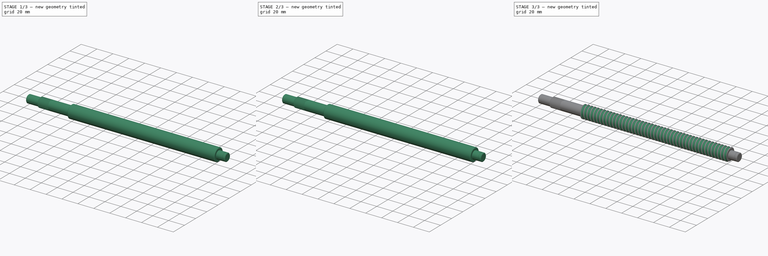
[diagram: build sequence overview — one tinted view per stage of 3, left to right]
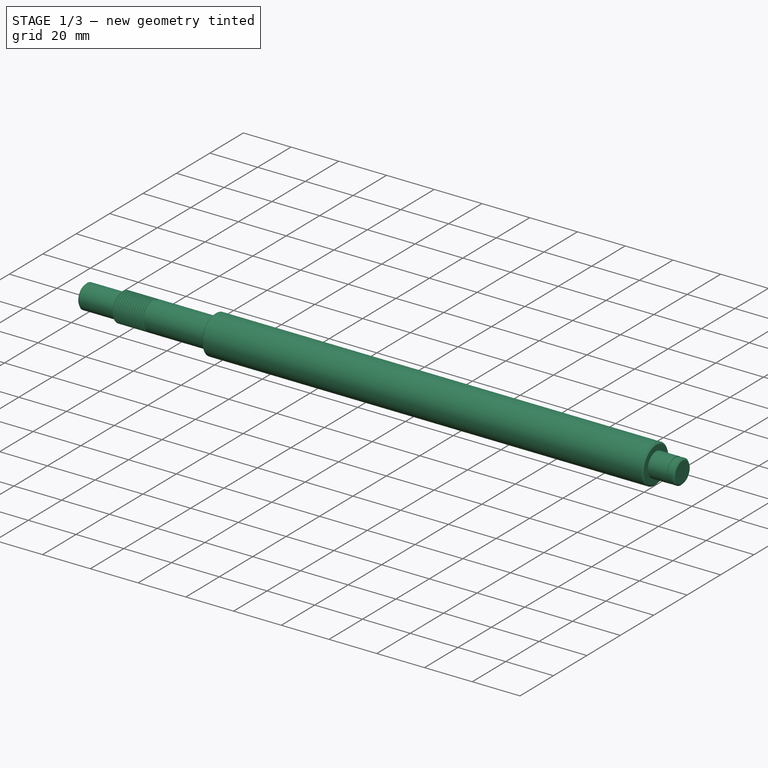
[diagram: stage 1 of 3 — iso view after this stage's code; geometry added in this stage tinted green]
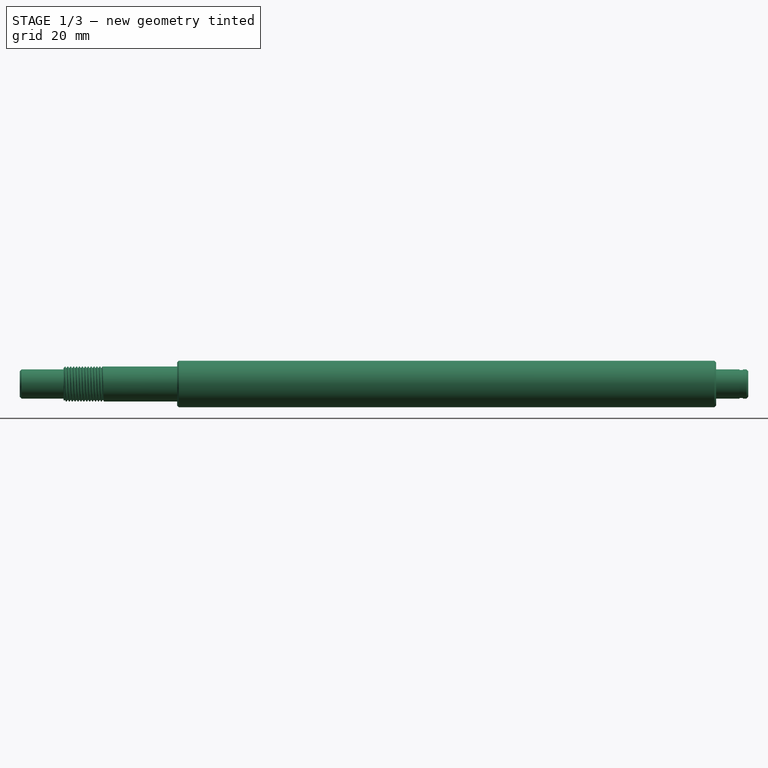
[diagram: stage 1 of 3 — front view after this stage's code; geometry added in this stage tinted green]
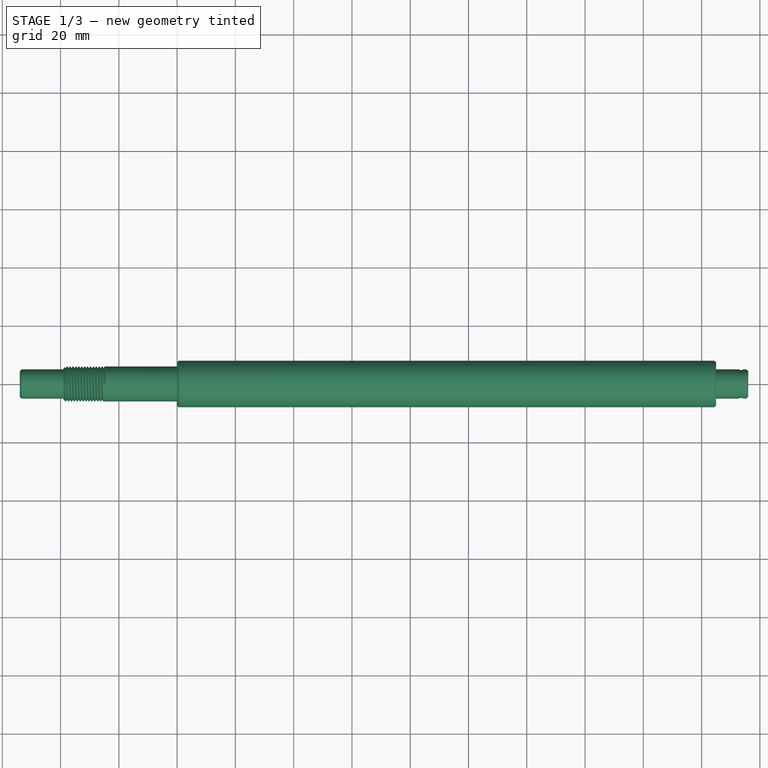
[diagram: stage 1 of 3 — top view after this stage's code; geometry added in this stage tinted green]
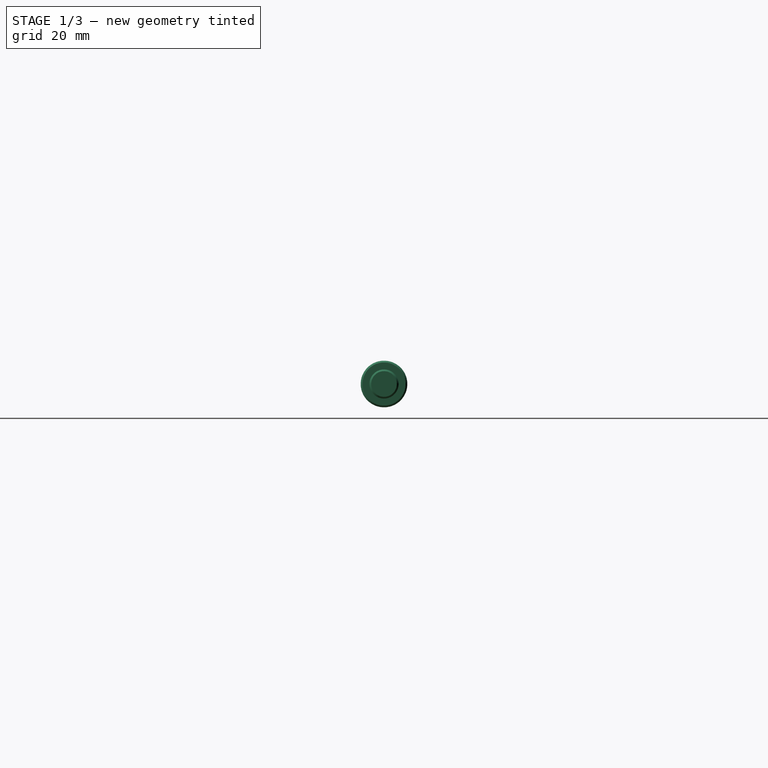
[diagram: stage 1 of 3 — right view after this stage's code; geometry added in this stage tinted green]
FCSTD DOCUMENT  (FreeCAD 0.21R33771 (Git))
Label: BallScrew_SFU16xx
License: Creative Commons Attribution 4.0
LicenseURL: https://creativecommons.org/licenses/by/4.0/
objects: Sketcher::SketchObject×4, PartDesign::SubtractiveHelix×2, PartDesign::Body×2, App::FeaturePython×1, PartDesign::Revolution×1, PartDesign::Pocket×1, PartDesign::FeatureBase×1
note: 15 computed .brp shape members not serialized (recipe doc carries the construction recipe); baked Part::Feature solids carry a one-line shape summary decoded from their .brp

FEATURE [App::FeaturePython] PropertyBag  label="Dimensions"  # WARN: FeaturePython — macro-defined, semantics opaque (R4)
  CustomPropertyGroups = Dimensions | Notes
  Length = 250
  Notes = See Tooltip
  Pitch = 5
FEATURE [Sketcher::SketchObject] Sketch
  FullyConstrained = true
  MapMode = 5
  Placement = pos=(0,0,0) rot=(1,0,0;1.5708rad)
  Support = -> [XZ_Plane]
  expr: Constraints[56] = <<Dimensions>>.Length
  sketch-geometry (19):
    g0: LineSegment StartX=0 StartY=6 StartZ=0 EndX=-38.4 EndY=6 EndZ=0
    g1: LineSegment StartX=-39 StartY=5.4 StartZ=0 EndX=-39 EndY=5 EndZ=0
    g2: LineSegment StartX=-39 StartY=5 StartZ=0 EndX=-53.4 EndY=5 EndZ=0
    g3: LineSegment StartX=-53.4 StartY=5 StartZ=0 EndX=-54 EndY=4.4 EndZ=0
    g4: LineSegment StartX=-54 StartY=4.4 StartZ=0 EndX=-54 EndY=-3.91e-14 EndZ=0
    g5: LineSegment StartX=-39 StartY=5.4 StartZ=0 EndX=-38.4 EndY=6 EndZ=0
    g6: LineSegment StartX=0 StartY=6 StartZ=0 EndX=-1.947e-13 EndY=7.4 EndZ=0
    g7: LineSegment StartX=-1.947e-13 StartY=7.4 StartZ=0 EndX=0.6 EndY=8 EndZ=0
    g8: LineSegment StartX=0.6 StartY=8 StartZ=0 EndX=184.4 EndY=8 EndZ=0
    g9: LineSegment StartX=184.4 StartY=8 StartZ=0 EndX=185 EndY=7.4 EndZ=0
    g10: LineSegment StartX=185 StartY=7.4 StartZ=0 EndX=185 EndY=5 EndZ=0
    g11: LineSegment StartX=185 StartY=5 StartZ=0 EndX=193 EndY=5 EndZ=0
    g12: LineSegment StartX=193 StartY=5 StartZ=0 EndX=193 EndY=4.8 EndZ=0
    g13: LineSegment StartX=193 StartY=4.8 StartZ=0 EndX=194.15 EndY=4.8 EndZ=0
    g14: LineSegment StartX=194.15 StartY=4.8 StartZ=0 EndX=194.15 EndY=5 EndZ=0
    g15: LineSegment StartX=194.15 StartY=5 StartZ=0 EndX=195.4 EndY=5 EndZ=0
    g16: LineSegment StartX=196 StartY=4.4 StartZ=0 EndX=196 EndY=-1.87e-14 EndZ=0
    g17: LineSegment StartX=196 StartY=-1.83e-14 StartZ=0 EndX=-54 EndY=-3.95e-14 EndZ=0
    g18: LineSegment StartX=195.4 StartY=5 StartZ=0 EndX=196 EndY=4.4 EndZ=0
  constraints (58):
    c: PointOnObject(g0,g-2)
    c: Horizontal(g0)
    c: Vertical(g1)
    c: Coincident(g1,g2)
    c: Horizontal(g2)
    c: Coincident(g2,g3)
    c: Coincident(g3,g4)
    c: PointOnObject(g4,g-1)
    c: Vertical(g4)
    c: Coincident(g0,g5)
    c: Coincident(g1,g5)
    c: Angle(g4,g3) = 2.35619
    c: Parallel(g3,g5)
    c: Coincident(g0,g6)
    c: PointOnObject(g6,g-2)
    c: Coincident(g6,g7)
    c: Coincident(g7,g8)
    c: Horizontal(g8)
    c: Parallel(g7,g5)
    c: DistanceX(g3,g1) = 15
    c: DistanceY(g4,g2) = 5
    c: DistanceY(g4,g0) = 6
    c: DistanceY(g3,g2) = 0.6
    c: Equal(g3,g5)
    c: DistanceX(g1,g6) = 39
    c: DistanceY(g4,g7) = 8
    c: Equal(g5,g7)
    c: Coincident(g8,g9)
    c: Coincident(g9,g10)
    c: Vertical(g10)
    c: Coincident(g10,g11)
    c: Horizontal(g11)
    c: Coincident(g11,g12)
    c: Vertical(g12)
    c: Coincident(g12,g13)
    c: Horizontal(g13)
    c: Coincident(g13,g14)
    c: Vertical(g14)
    c: Coincident(g14,g15)
    c: Horizontal(g15)
    c: PointOnObject(g16,g-1)
    c: Vertical(g16)
    c: Coincident(g16,g17)
    c: Coincident(g17,g4)
    c: Perpendicular(g9,g7)
    c: Equal(g7,g9)
    c: Horizontal(g11,g14)
    c: DistanceY(g16,g15) = 5
    c: DistanceX(g9,g11) = 8
    c: DistanceX(g9,g16) = 11
    c: Coincident(g18,g15)
    c: Coincident(g18,g16)
    c: Parallel(g9,g18)
    c: Equal(g18,g9)
    c: DistanceY(g12,g12) = 0.2
    c: DistanceX(g13,g13) = 1.15
    c: DistanceX(g3,g16) = 250
    c: DistanceX(g6,g9) = 185  'effLenght'
FEATURE [PartDesign::Revolution] Revolution
  Angle = 360
  Axis = (1,0,0)
  Base = (0,0,0)
  Placement = pos=(0,0,0) rot=(1,0,0;1.5708rad)
  Profile = -> Sketch
  ReferenceAxis = -> Sketch [H_Axis]
  Refine = true
FEATURE [Sketcher::SketchObject] Sketch001
  FullyConstrained = true
  MapMode = 5
  Placement = pos=(0,0,0) rot=(1,0,0;1.5708rad)
  Support = -> [XZ_Plane]
  sketch-geometry (6):
    g0: LineSegment StartX=-25.48 StartY=6.2 StartZ=0 EndX=-24.52 EndY=6.2 EndZ=0
    g1: LineSegment StartX=-24.52 StartY=6.2 StartZ=0 EndX=-25 EndY=5.36862 EndZ=0
    g2: LineSegment StartX=-25 StartY=5.36862 StartZ=0 EndX=-25.48 EndY=6.2 EndZ=0
    g3: LineSegment StartX=-24.52 StartY=6.2 StartZ=0 EndX=-24.9134 EndY=5.51862 EndZ=0
    g4: ArcOfCircle CenterX=-25 CenterY=5.56862 CenterZ=0 NormalX=0 NormalY=0 NormalZ=1 AngleXU=0 Radius=0.1 StartAngle=3.66519 EndAngle=5.75959
    g5: LineSegment StartX=-25.0866 StartY=5.51862 StartZ=0 EndX=-25.48 EndY=6.2 EndZ=0
  constraints (16):
    c: Horizontal(g0)
    c: Coincident(g0,g1)
    c: Coincident(g1,g2)
    c: Coincident(g2,g0)
    c: Coincident(g0,g3)
    c: Tangent(g3,g4) = 1.5708
    c: Tangent(g4,g5) = 1.5708
    c: Coincident(g5,g0)
    c: Radius(g4) = 0.1
    c: PointOnObject(g3,g1)
    c: PointOnObject(g4,g2)
    c: Equal(g1,g2)
    c: Equal(g2,g0)
    c: DistanceX(g0,g0) = 0.96
    c: DistanceY(g-1,g0) = 6.2
    c: DistanceX(g1,g-1) = 25
FEATURE [PartDesign::SubtractiveHelix] SubtractiveHelix
  Angle = 0
  Axis = (1,0,0)
  Base = (0,0,0)
  BaseFeature = -> Revolution
  Growth = 0
  HasBeenEdited = true
  Height = 14
  LeftHanded = false
  Mode = 0
  Outside = false
  Pitch = 1
  Placement = pos=(0,0,0) rot=(1,0,0;1.5708rad)
  Profile = -> Sketch001
  ReferenceAxis = -> Sketch001 [H_Axis]
  Refine = true
  Reversed = true
  Turns = 14
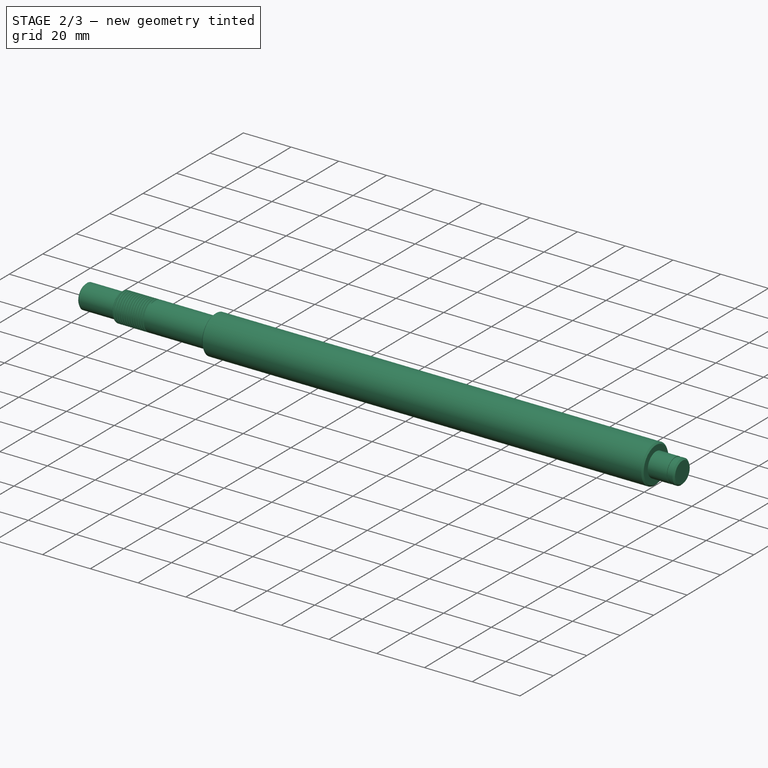
[diagram: stage 2 of 3 — iso view after this stage's code; geometry added in this stage tinted green]
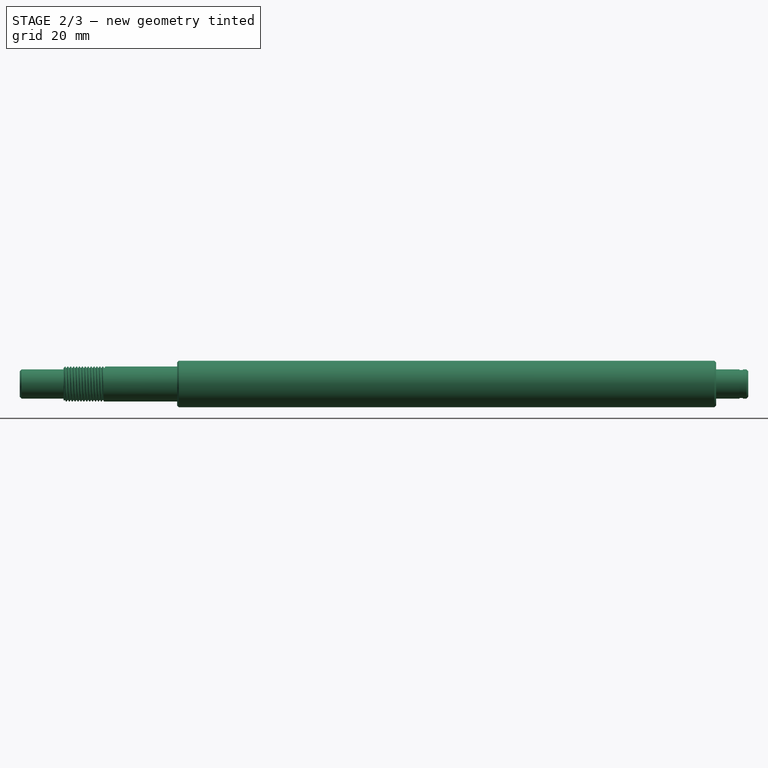
[diagram: stage 2 of 3 — front view after this stage's code; geometry added in this stage tinted green]
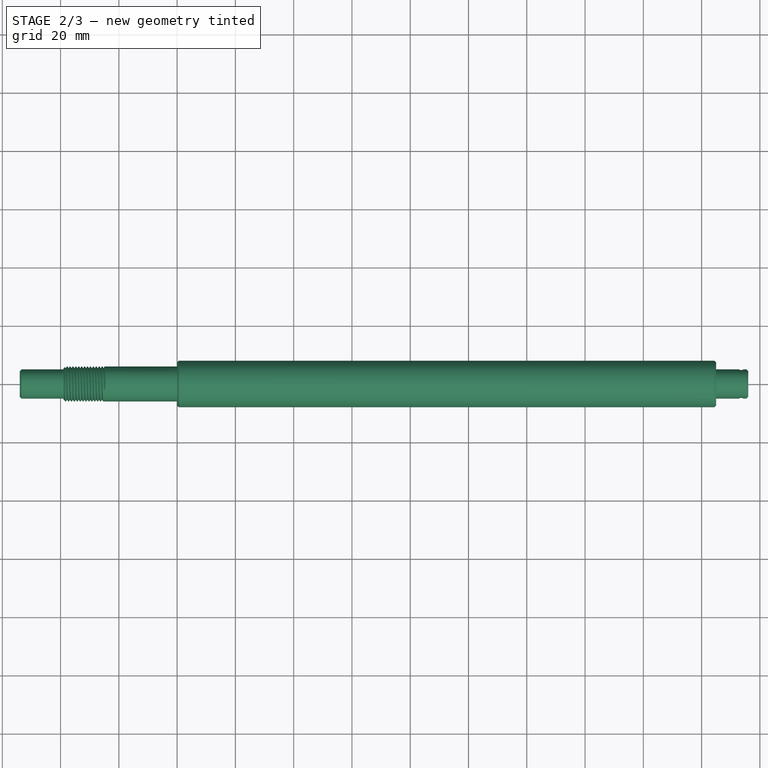
[diagram: stage 2 of 3 — top view after this stage's code; geometry added in this stage tinted green]
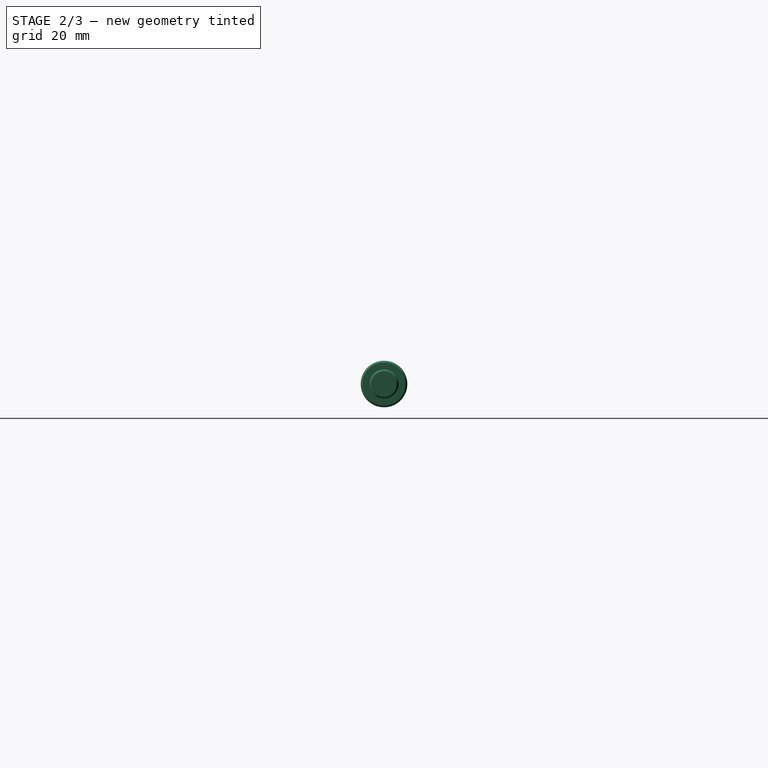
[diagram: stage 2 of 3 — right view after this stage's code; geometry added in this stage tinted green]
FEATURE [Sketcher::SketchObject] Sketch002
  FullyConstrained = true
  MapMode = 5
  Placement = pos=(0,0,0) rot=(1,0,0;1.5708rad)
  Support = -> [XZ_Plane]
  sketch-geometry (6):
    g0: LineSegment StartX=-25.48 StartY=6.2 StartZ=0 EndX=-24.52 EndY=6.2 EndZ=0
    g1: LineSegment StartX=-24.52 StartY=6.2 StartZ=0 EndX=-25 EndY=5.36862 EndZ=0
    g2: LineSegment StartX=-25 StartY=5.36862 StartZ=0 EndX=-25.48 EndY=6.2 EndZ=0
    g3: LineSegment StartX=-24.52 StartY=6.2 StartZ=0 EndX=-24.9134 EndY=5.51862 EndZ=0
    g4: ArcOfCircle CenterX=-25 CenterY=5.56862 CenterZ=0 NormalX=0 NormalY=0 NormalZ=1 AngleXU=0 Radius=0.1 StartAngle=3.66519 EndAngle=5.75959
    g5: LineSegment StartX=-25.0866 StartY=5.51862 StartZ=0 EndX=-25.48 EndY=6.2 EndZ=0
  constraints (16):
    c: Horizontal(g0)
    c: Coincident(g0,g1)
    c: Coincident(g1,g2)
    c: Coincident(g2,g0)
    c: Coincident(g0,g3)
    c: Tangent(g3,g4) = 1.5708
    c: Tangent(g4,g5) = 1.5708
    c: Coincident(g5,g0)
    c: Radius(g4) = 0.1
    c: PointOnObject(g3,g1)
    c: PointOnObject(g4,g2)
    c: Equal(g1,g2)
    c: Equal(g2,g0)
    c: DistanceX(g0,g0) = 0.96
    c: DistanceY(g-1,g0) = 6.2
    c: DistanceX(g1,g-1) = 25
FEATURE [PartDesign::Pocket] Pocket
  BaseFeature = -> SubtractiveHelix
  Direction = (0,1,-2e-16)
  Length = 5
  Length2 = 5
  Placement = pos=(0,0,0) rot=(1,0,0;1.5708rad)
  Profile = -> Sketch002
  ReferenceAxis = -> Sketch002 [N_Axis]
  Refine = true
  Reversed = true
  Type = 1
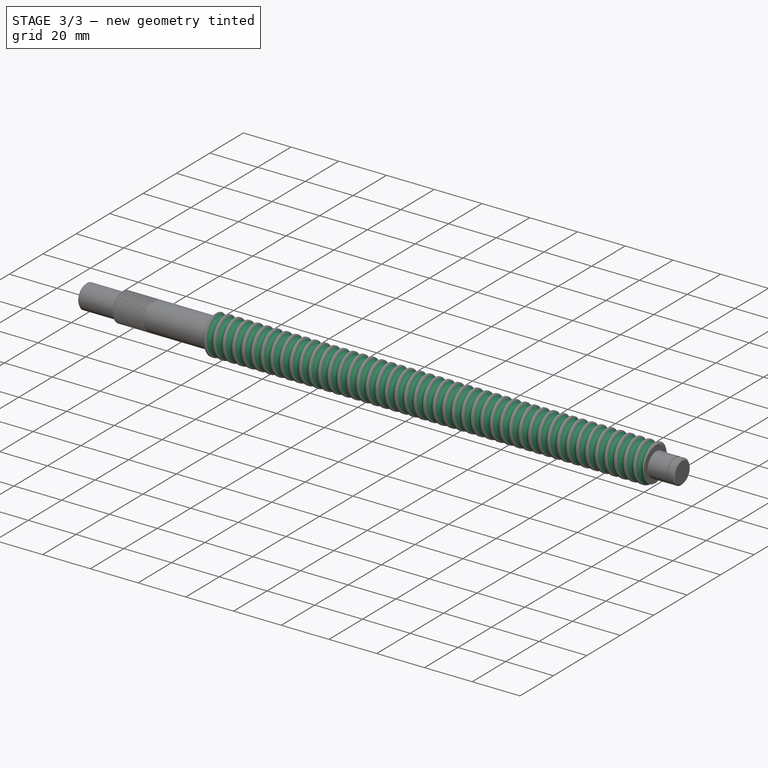
[diagram: stage 3 of 3 — iso view after this stage's code; geometry added in this stage tinted green]
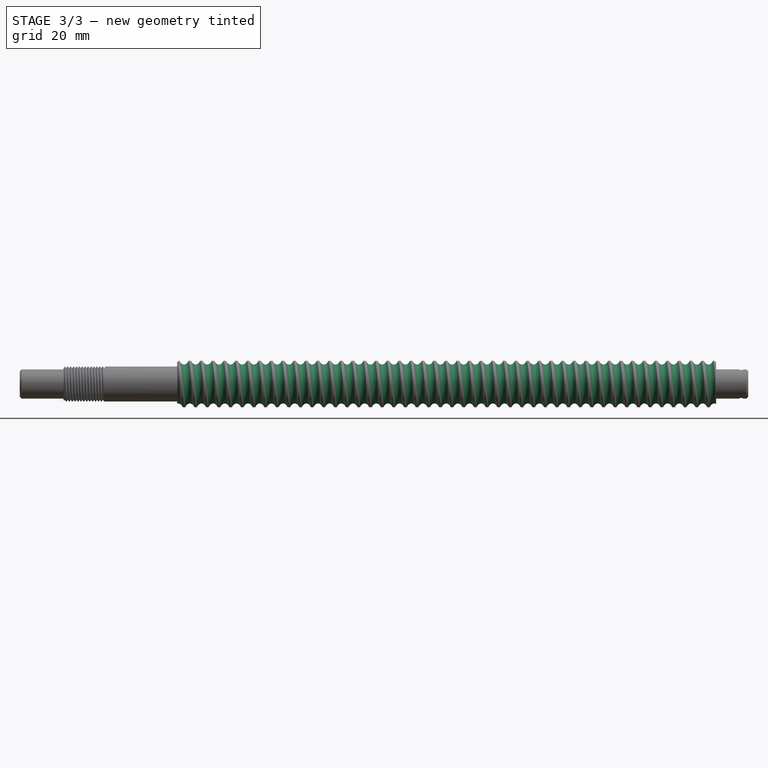
[diagram: stage 3 of 3 — front view after this stage's code; geometry added in this stage tinted green]
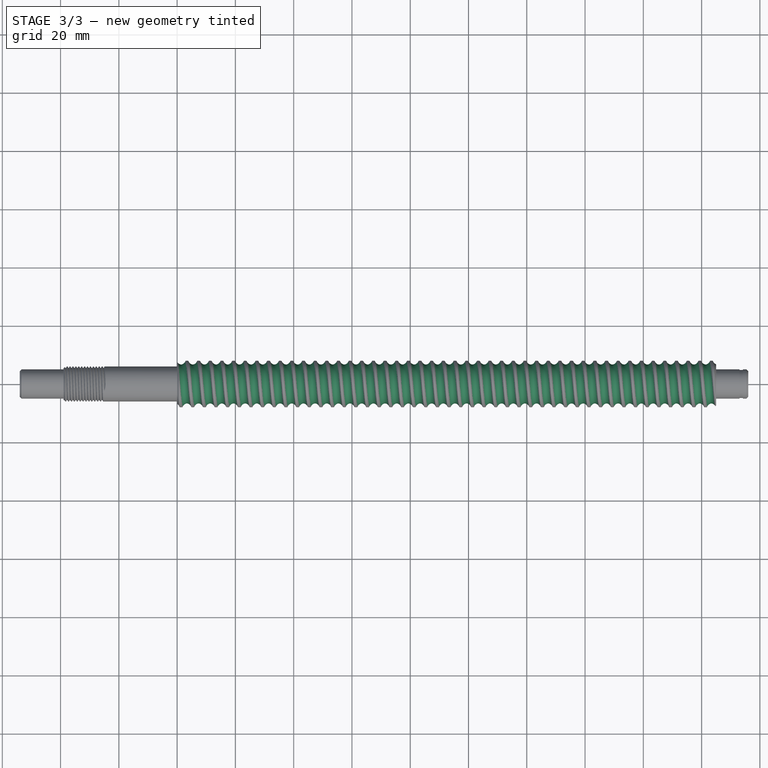
[diagram: stage 3 of 3 — top view after this stage's code; geometry added in this stage tinted green]
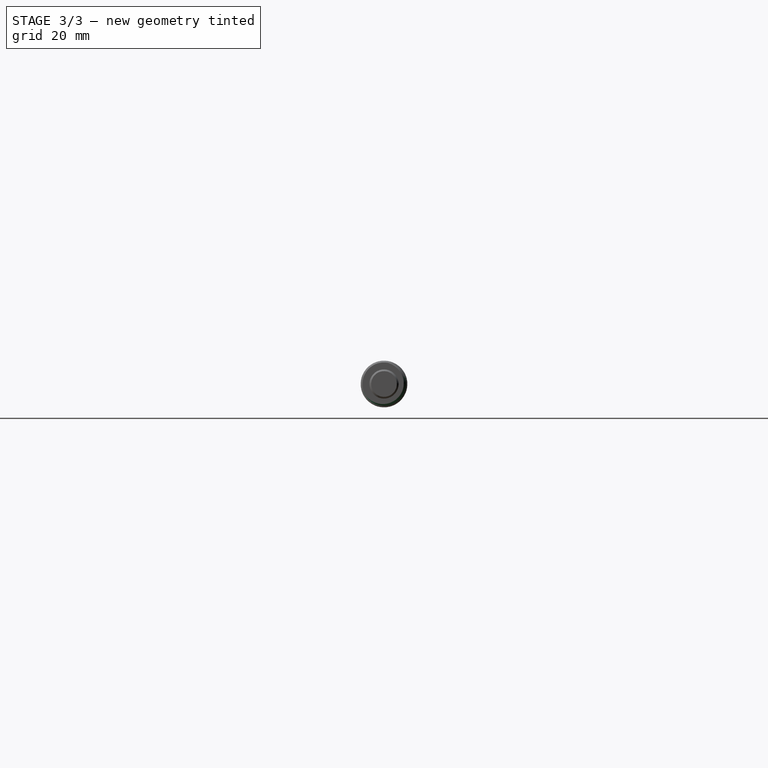
[diagram: stage 3 of 3 — right view after this stage's code; geometry added in this stage tinted green]
FEATURE [PartDesign::Body] Body  label="Spindle-Body"
  Group = -> [Sketch,Revolution,Sketch001,SubtractiveHelix,Sketch002,Pocket]
  Origin = -> Origin
  Tip = -> Pocket
FEATURE [PartDesign::FeatureBase] Clone
  BaseFeature = -> Body
FEATURE [Sketcher::SketchObject] Sketch003
  FullyConstrained = true
  MapMode = 5
  Placement = pos=(0,0,0) rot=(1,0,0;1.5708rad)
  Support = -> [XZ_Plane001]
  expr: Constraints[17] = .Constraints.kugel / 2 + 0.3 mm
  expr: Constraints[18] = .Constraints.kugel / 2 - 0.4 mm
  sketch-geometry (16):
    g0: ArcOfCircle CenterX=-1.64261 CenterY=7.88682 CenterZ=0 NormalX=0 NormalY=0 NormalZ=1 AngleXU=0 Radius=1.2 StartAngle=4.34694 EndAngle=5.07783
    g1: ArcOfCircle CenterX=-1.39246 CenterY=8.5406 CenterZ=0 NormalX=0 NormalY=0 NormalZ=1 AngleXU=0 Radius=1.9 StartAngle=3.22886 EndAngle=4.34694
    g2: ArcOfCircle CenterX=-1.89277 CenterY=8.5406 CenterZ=0 NormalX=0 NormalY=0 NormalZ=1 AngleXU=0 Radius=1.9 StartAngle=5.07783 EndAngle=6.19592
    g3: LineSegment StartX=-1.64261 StartY=9.375 StartZ=0 EndX=-1.64261 EndY=6.68682 EndZ=0
    g4: LineSegment StartX=-3.28523 StartY=8.375 StartZ=0 EndX=-3.37272 EndY=9.375 EndZ=0
    g5: LineSegment StartX=-3.37272 StartY=9.375 StartZ=0 EndX=0.0874887 EndY=9.375 EndZ=0
    g6: LineSegment StartX=0.0874887 StartY=9.375 StartZ=0 EndX=-1.3e-15 EndY=8.375 EndZ=0
    g7: Circle CenterX=-1.64261 CenterY=8.375 CenterZ=0 NormalX=0 NormalY=0 NormalZ=1 AngleXU=0 Radius=1.6
    g8: LineSegment StartX=-0.113168 StartY=7.875 StartZ=0 EndX=0.157386 EndY=8.14555 EndZ=0
    g9: LineSegment StartX=0.157386 StartY=8.14555 StartZ=0 EndX=0.157386 EndY=9.375 EndZ=0
    g10: ArcOfCircle CenterX=-1.39246 CenterY=8.5406 CenterZ=0 NormalX=0 NormalY=0 NormalZ=1 AngleXU=0 Radius=1.9 StartAngle=3.4995 EndAngle=4.34694
    g11: ArcOfCircle CenterX=-1.89277 CenterY=8.5406 CenterZ=0 NormalX=0 NormalY=0 NormalZ=1 AngleXU=0 Radius=1.9 StartAngle=5.07783 EndAngle=5.92528
    g12: LineSegment StartX=0.0874887 StartY=9.375 StartZ=0 EndX=0.157386 EndY=9.375 EndZ=0
    g13: LineSegment StartX=-3.37272 StartY=9.375 StartZ=0 EndX=-3.44261 EndY=9.375 EndZ=0
    g14: LineSegment StartX=-3.44261 StartY=9.375 StartZ=0 EndX=-3.44261 EndY=8.14555 EndZ=0
    g15: LineSegment StartX=-3.44261 StartY=8.14555 StartZ=0 EndX=-3.17206 EndY=7.875 EndZ=0
  constraints (46):
    c: Vertical(g3)
    c: PointOnObject(g3,g0)
    c: Symmetric(g1,g2,g3)
    c: PointOnObject(g0,g3)
    c: Tangent(g2,g0) = -1.5708
    c: Tangent(g1,g0) = -1.5708
    c: Horizontal(g1,g2)
    c: Tangent(g1,g4) = 1.5708
    c: Coincident(g4,g5)
    c: Horizontal(g5)
    c: Coincident(g5,g6)
    c: Tangent(g6,g2) = 1.5708
    c: DistanceY(g6,g6) = 1
    c: PointOnObject(g3,g5)
    c: PointOnObject(g7,g3)
    c: Diameter(g7) = 3.2  'kugel'
    c: Tangent(g2,g7)
    c: Radius(g2) = 1.9
    c: Radius(g0) = 1.2
    c: Horizontal(g2,g7)
    c: Angle(g6,g4) = 0.174533
    c: PointOnObject(g2,g-2)
    c: DistanceY(g-1,g7) = 8.375
    c: Coincident(g8,g9)
    c: Coincident(g10,g1)
    c: Coincident(g10,g0)
    c: Coincident(g11,g2)
    c: Coincident(g11,g8)
    c: Coincident(g11,g0)
    c: Coincident(g12,g5)
    c: Coincident(g12,g9)
    c: Horizontal(g12)
    c: Coincident(g5,g13)
    c: Horizontal(g13)
    c: Coincident(g13,g14)
    c: Vertical(g14)
    c: Coincident(g14,g15)
    c: Coincident(g15,g10)
    c: Vertical(g9)
    c: Equal(g15,g8)
    c: Equal(g12,g13)
    c: Perpendicular(g15,g8)
    c: Equal(g9,g14)
    c: DistanceY(g10,g1) = 0.5
    c: DistanceX(g13,g9) = 3.6
    c: DistanceY(g-1,g3) = 6.68682
FEATURE [PartDesign::SubtractiveHelix] SubtractiveHelix001
  Angle = 0
  Axis = (1,0,0)
  Base = (0,0,0)
  BaseFeature = -> Clone
  Growth = 0
  HasBeenEdited = true
  Height = 190
  LeftHanded = false
  Mode = 0
  Outside = false
  Pitch = 4
  Profile = -> Sketch003
  ReferenceAxis = -> Sketch003 [H_Axis]
  Refine = true
  Turns = 47.5
  expr: Height = Sketch.Constraints.effLenght + <<Dimensions>>.Pitch
FEATURE [PartDesign::Body] Body001  label="SFU160x"
  Group = -> [Clone,Sketch003,SubtractiveHelix001]
  Origin = -> Origin001
  Tip = -> SubtractiveHelix001
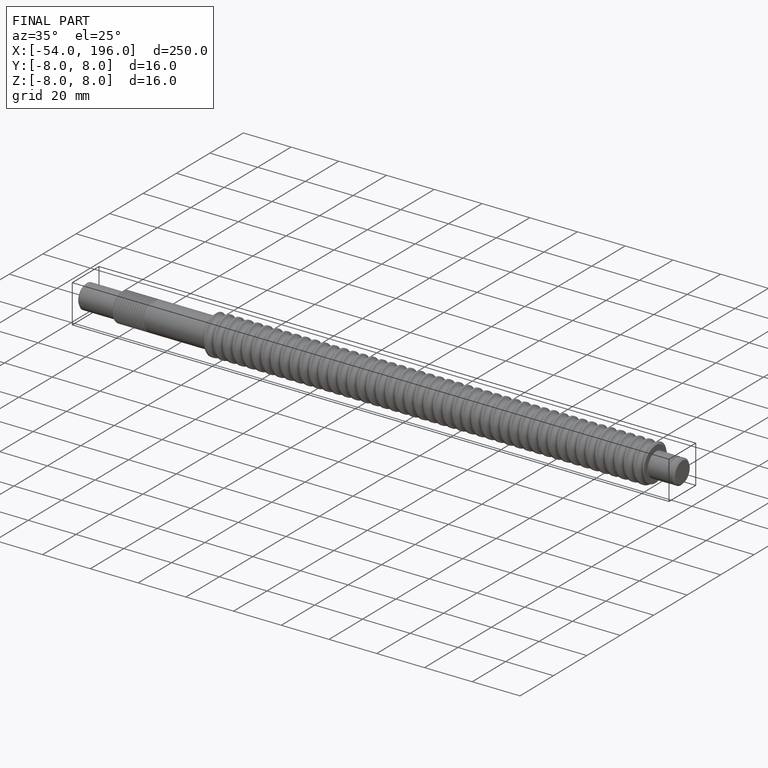
[diagram: finished part — iso view with bounding-box wireframe]
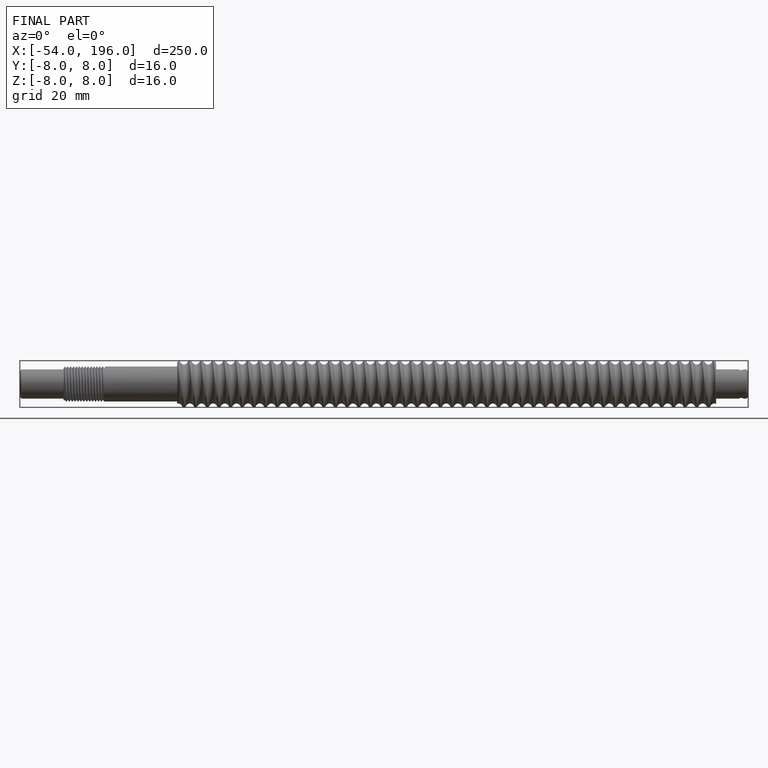
[diagram: finished part — front view with bounding-box wireframe]
